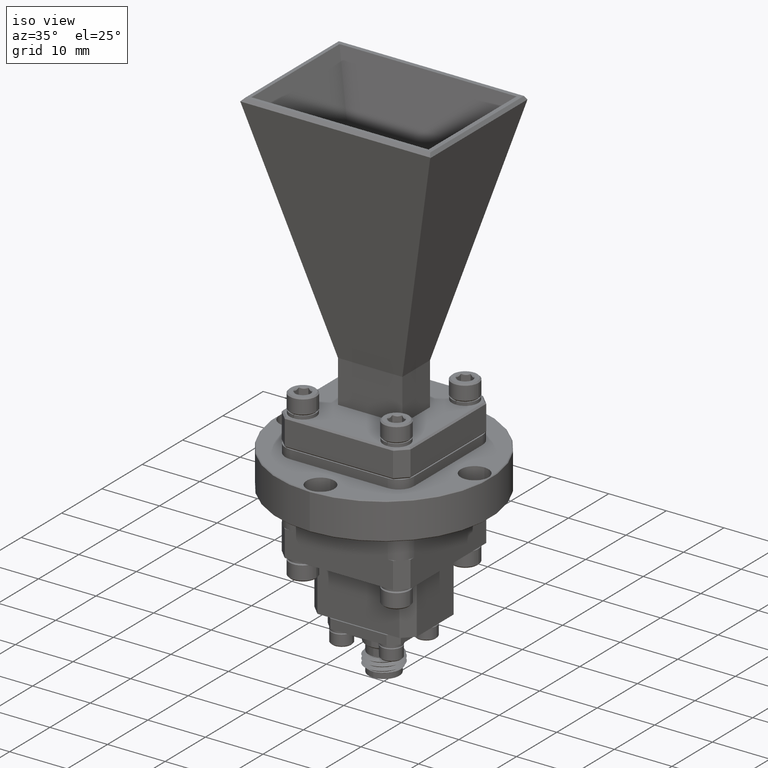
[diagram: clean part render]
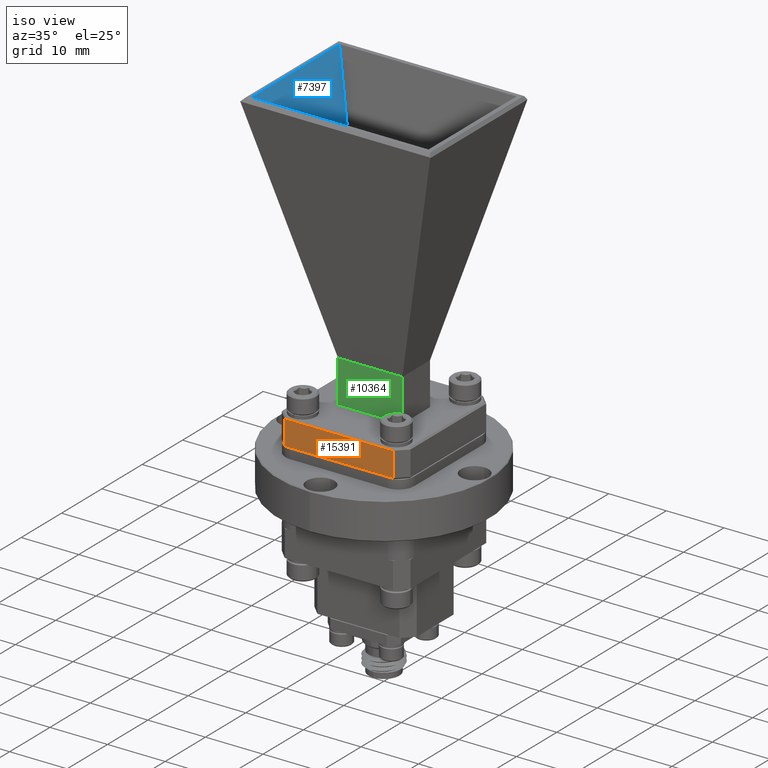
[diagram: same view with three faces highlighted in distinct colors, each labeled with its STEP entity id]
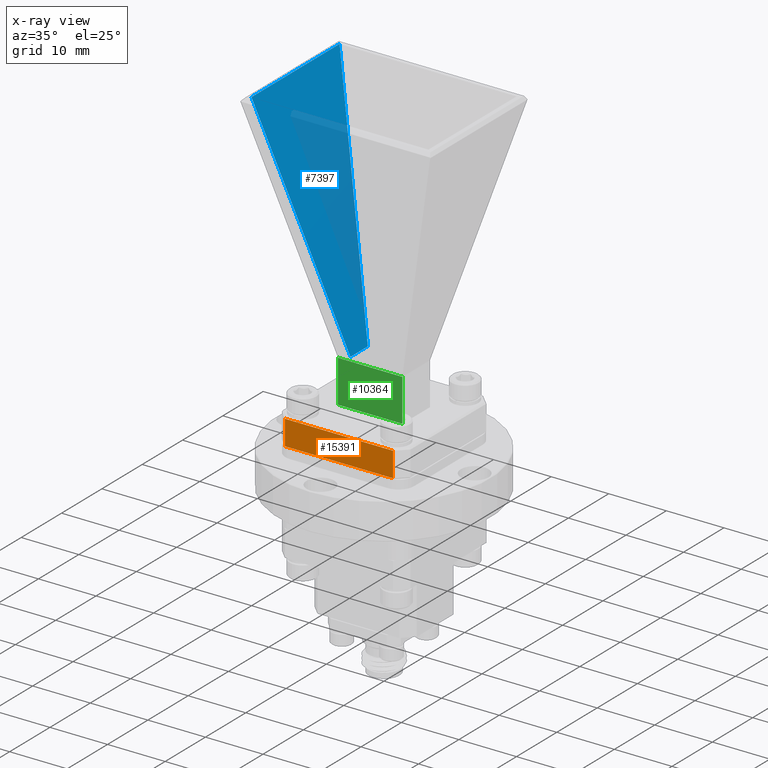
[diagram: x-ray of the same camera — body ghosted, the three highlighted faces saturated]
A machine part, iso view with three faces highlighted in distinct colors.
The next image is the same camera in x-ray (body ghosted, the three faces saturated) — at least one of them is partly hidden behind the body in this view.
Their STEP definitions:

[orange] entity #15391 — the highlighted planar face has unit normal (-0, 1, 0).
#891 = AXIS2_PLACEMENT_3D ( 'NONE', #8264, #13083, #6870 ) ;
#1344 = FACE_OUTER_BOUND ( 'NONE', #14027, .T. ) ;
#2558 = LINE ( 'NONE', #17818, #19158 ) ;
#2885 = VERTEX_POINT ( 'NONE', #8885 ) ;
#3293 = CARTESIAN_POINT ( 'NONE',  ( 0.3699999999999998300, -0.4399999999999999500, 0.6799999999999997200 ) ) ;
#5118 = VECTOR ( 'NONE', #13982, 39.37007874015748100 ) ;
#5693 = CARTESIAN_POINT ( 'NONE',  ( -0.3699999999999995500, -0.4400000000000001100, 0.8599999999999998800 ) ) ;
#6053 = CARTESIAN_POINT ( 'NONE',  ( -0.4399999999999996100, -0.4400000000000001100, 0.8599999999999998800 ) ) ;
#6206 = VECTOR ( 'NONE', #11234, 39.37007874015748100 ) ;
#6694 = LINE ( 'NONE', #15927, #6206 ) ;
#6870 = DIRECTION ( 'NONE',  ( 1.000000000000000000, 1.223371201526378100E-016, 0.0000000000000000000 ) ) ;
#7316 = VECTOR ( 'NONE', #17365, 39.37007874015748100 ) ;
#7492 = CARTESIAN_POINT ( 'NONE',  ( -0.3699999999999995500, -0.4400000000000001100, 0.6899999999999996100 ) ) ;
#8264 = CARTESIAN_POINT ( 'NONE',  ( -0.4399999999999996100, -0.4400000000000001100, 0.6799999999999997200 ) ) ;
#8470 = PLANE ( 'NONE',  #891 ) ;
#8835 = CARTESIAN_POINT ( 'NONE',  ( 0.3699999999999998300, -0.4399999999999999500, 0.8599999999999998800 ) ) ;
#8885 = CARTESIAN_POINT ( 'NONE',  ( 0.3699999999999998300, -0.4399999999999999500, 0.6899999999999996100 ) ) ;
#8908 = EDGE_CURVE ( 'NONE', #2885, #15089, #15571, .T. ) ;
#9074 = ORIENTED_EDGE ( 'NONE', *, *, #8908, .T. ) ;
#9206 = LINE ( 'NONE', #6053, #5118 ) ;
#11234 = DIRECTION ( 'NONE',  ( 1.000000000000000000, 1.223371201526378100E-016, 0.0000000000000000000 ) ) ;
#12630 = ORIENTED_EDGE ( 'NONE', *, *, #16282, .T. ) ;
#13083 = DIRECTION ( 'NONE',  ( -1.223371201526378100E-016, 1.000000000000000000, 0.0000000000000000000 ) ) ;
#13250 = ORIENTED_EDGE ( 'NONE', *, *, #19067, .T. ) ;
#13982 = DIRECTION ( 'NONE',  ( -1.000000000000000000, -1.223371201526378100E-016, 0.0000000000000000000 ) ) ;
#14027 = EDGE_LOOP ( 'NONE', ( #9074, #13250, #18145, #12630 ) ) ;
#15089 = VERTEX_POINT ( 'NONE', #8835 ) ;
#15379 = EDGE_CURVE ( 'NONE', #18326, #16510, #2558, .T. ) ;
#15391 = ADVANCED_FACE ( 'NONE', ( #1344 ), #8470, .F. ) ;
#15571 = LINE ( 'NONE', #3293, #7316 ) ;
#15927 = CARTESIAN_POINT ( 'NONE',  ( 0.3699999999999997200, -0.4399999999999999500, 0.6899999999999996100 ) ) ;
#16282 = EDGE_CURVE ( 'NONE', #16510, #2885, #6694, .T. ) ;
#16300 = DIRECTION ( 'NONE',  ( 0.0000000000000000000, 0.0000000000000000000, -1.000000000000000000 ) ) ;
#16510 = VERTEX_POINT ( 'NONE', #7492 ) ;
#17365 = DIRECTION ( 'NONE',  ( 0.0000000000000000000, 0.0000000000000000000, 1.000000000000000000 ) ) ;
#17818 = CARTESIAN_POINT ( 'NONE',  ( -0.3699999999999995500, -0.4400000000000001100, 0.6799999999999997200 ) ) ;
#18145 = ORIENTED_EDGE ( 'NONE', *, *, #15379, .T. ) ;
#18326 = VERTEX_POINT ( 'NONE', #5693 ) ;
#19067 = EDGE_CURVE ( 'NONE', #15089, #18326, #9206, .T. ) ;
#19158 = VECTOR ( 'NONE', #16300, 39.37007874015748100 ) ;

[blue] entity #7397 — the highlighted planar face has unit normal (-0.9658, -0, -0.2593).
#3 = B_SPLINE_CURVE_WITH_KNOTS ( 'NONE', 3,
 ( #17729, #15953, #5092, #11328 ),
 .UNSPECIFIED., .F., .F.,
 ( 4, 4 ),
 ( 0.0000000000000000000, 1.000000000000000000 ),
 .UNSPECIFIED. ) ;
#968 = DIRECTION ( 'NONE',  ( -0.2540148692151999500, -0.2014600686879173500, 0.9459864094910900300 ) ) ;
#1242 = VECTOR ( 'NONE', #968, 39.37007874015748900 ) ;
#1505 = VERTEX_POINT ( 'NONE', #1867 ) ;
#1867 = CARTESIAN_POINT ( 'NONE',  ( -0.1699999999999997900, 0.08499999999999986700, 1.159999999999999700 ) ) ;
#1869 = DIRECTION ( 'NONE',  ( -0.9657882279462223200, -2.680600818944562600E-016, -0.2593320241707448000 ) ) ;
#3383 = DIRECTION ( 'NONE',  ( -0.2593320241707447500, -7.197909606425211500E-017, 0.9657882279462222100 ) ) ;
#3393 = DIRECTION ( 'NONE',  ( -2.775557561562891400E-016, 1.000000000000000000, 0.0000000000000000000 ) ) ;
#3764 = EDGE_CURVE ( 'NONE', #1505, #15809, #6757, .T. ) ;
#4011 = CARTESIAN_POINT ( 'NONE',  ( -0.1699999999999997300, -0.08500000000000010300, 1.159999999999999700 ) ) ;
#4525 = CARTESIAN_POINT ( 'NONE',  ( -0.6049999999999995400, -0.4300000000000002200, 2.779999999999999800 ) ) ;
#5092 = CARTESIAN_POINT ( 'NONE',  ( -0.1699999999999997300, -0.02833333333333343600, 1.159999999999999700 ) ) ;
#5196 = CARTESIAN_POINT ( 'NONE',  ( -0.1699999999999997300, -0.08500000000000010300, 1.159999999999999700 ) ) ;
#6101 = ORIENTED_EDGE ( 'NONE', *, *, #3764, .T. ) ;
#6229 = CARTESIAN_POINT ( 'NONE',  ( -0.6049999999999998700, 0.4299999999999997700, 2.779999999999999800 ) ) ;
#6757 = LINE ( 'NONE', #12200, #13545 ) ;
#7397 = ADVANCED_FACE ( 'NONE', ( #8783 ), #15740, .F. ) ;
#7836 = LINE ( 'NONE', #4011, #1242 ) ;
#8341 = VERTEX_POINT ( 'NONE', #4525 ) ;
#8783 = FACE_OUTER_BOUND ( 'NONE', #14409, .T. ) ;
#9205 = ORIENTED_EDGE ( 'NONE', *, *, #17723, .F. ) ;
#9227 = EDGE_CURVE ( 'NONE', #1505, #11924, #3, .T. ) ;
#9272 = DIRECTION ( 'NONE',  ( -0.2540148692152000600, 0.2014600686879172200, 0.9459864094910900300 ) ) ;
#9816 = ORIENTED_EDGE ( 'NONE', *, *, #13764, .F. ) ;
#11328 = CARTESIAN_POINT ( 'NONE',  ( -0.1699999999999997300, -0.08500000000000010300, 1.159999999999999700 ) ) ;
#11924 = VERTEX_POINT ( 'NONE', #5196 ) ;
#12200 = CARTESIAN_POINT ( 'NONE',  ( -0.1699999999999997900, 0.08499999999999986700, 1.159999999999999700 ) ) ;
#12420 = AXIS2_PLACEMENT_3D ( 'NONE', #12741, #1869, #3383 ) ;
#12741 = CARTESIAN_POINT ( 'NONE',  ( -0.08593362654938009600, -9.214757253777201300E-017, 0.8469252299080365400 ) ) ;
#13545 = VECTOR ( 'NONE', #9272, 39.37007874015748900 ) ;
#13555 = ORIENTED_EDGE ( 'NONE', *, *, #9227, .F. ) ;
#13764 = EDGE_CURVE ( 'NONE', #8341, #15809, #19780, .T. ) ;
#14409 = EDGE_LOOP ( 'NONE', ( #9205, #13555, #6101, #9816 ) ) ;
#14874 = VECTOR ( 'NONE', #3393, 39.37007874015748100 ) ;
#15740 = PLANE ( 'NONE',  #12420 ) ;
#15809 = VERTEX_POINT ( 'NONE', #6229 ) ;
#15953 = CARTESIAN_POINT ( 'NONE',  ( -0.1699999999999997600, 0.02833333333333323100, 1.159999999999999700 ) ) ;
#17723 = EDGE_CURVE ( 'NONE', #11924, #8341, #7836, .T. ) ;
#17729 = CARTESIAN_POINT ( 'NONE',  ( -0.1699999999999997900, 0.08499999999999986700, 1.159999999999999700 ) ) ;
#18921 = CARTESIAN_POINT ( 'NONE',  ( -0.6049999999999995400, -0.4300000000000002200, 2.779999999999999800 ) ) ;
#19780 = LINE ( 'NONE', #18921, #14874 ) ;

[green] entity #10364 — the highlighted planar face has unit normal (-0, 1, 0).
#193 = DIRECTION ( 'NONE',  ( 1.000000000000000000, 2.775557561562891400E-016, 0.0000000000000000000 ) ) ;
#264 = PLANE ( 'NONE',  #15739 ) ;
#1454 = ORIENTED_EDGE ( 'NONE', *, *, #8964, .F. ) ;
#1464 = VECTOR ( 'NONE', #8416, 39.37007874015748100 ) ;
#1703 = LINE ( 'NONE', #17628, #1464 ) ;
#2986 = EDGE_LOOP ( 'NONE', ( #16293, #1454, #5796, #12412 ) ) ;
#3618 = VECTOR ( 'NONE', #9349, 39.37007874015748100 ) ;
#5664 = EDGE_CURVE ( 'NONE', #9562, #11597, #11312, .T. ) ;
#5796 = ORIENTED_EDGE ( 'NONE', *, *, #5664, .F. ) ;
#7333 = DIRECTION ( 'NONE',  ( 1.000000000000000000, 3.773009954097587200E-016, 2.124204169286854300E-017 ) ) ;
#8207 = DIRECTION ( 'NONE',  ( -2.775557561562891400E-016, 1.000000000000000000, 0.0000000000000000000 ) ) ;
#8416 = DIRECTION ( 'NONE',  ( 0.0000000000000000000, 0.0000000000000000000, -1.000000000000000000 ) ) ;
#8964 = EDGE_CURVE ( 'NONE', #11597, #17535, #1703, .T. ) ;
#9349 = DIRECTION ( 'NONE',  ( 1.000000000000000000, 2.775557561562891400E-016, 0.0000000000000000000 ) ) ;
#9562 = VERTEX_POINT ( 'NONE', #11467 ) ;
#10202 = LINE ( 'NONE', #10406, #14096 ) ;
#10364 = ADVANCED_FACE ( 'NONE', ( #18211 ), #264, .F. ) ;
#10406 = CARTESIAN_POINT ( 'NONE',  ( -0.2199999999999997000, -0.1350000000000001800, 1.159999999999999700 ) ) ;
#10867 = CARTESIAN_POINT ( 'NONE',  ( -0.2199999999999997000, -0.1350000000000001800, 0.8699999999999997700 ) ) ;
#11139 = CARTESIAN_POINT ( 'NONE',  ( 0.2200000000000003100, -0.1350000000000000400, 1.159999999999999700 ) ) ;
#11312 = LINE ( 'NONE', #14936, #18631 ) ;
#11467 = CARTESIAN_POINT ( 'NONE',  ( -0.2199999999999997000, -0.1350000000000002300, 1.159999999999999700 ) ) ;
#11597 = VERTEX_POINT ( 'NONE', #12307 ) ;
#11655 = LINE ( 'NONE', #18640, #3618 ) ;
#12307 = CARTESIAN_POINT ( 'NONE',  ( 0.2200000000000003600, -0.1350000000000000100, 1.159999999999999700 ) ) ;
#12412 = ORIENTED_EDGE ( 'NONE', *, *, #14588, .T. ) ;
#14096 = VECTOR ( 'NONE', #18140, 39.37007874015748100 ) ;
#14588 = EDGE_CURVE ( 'NONE', #9562, #19072, #10202, .T. ) ;
#14936 = CARTESIAN_POINT ( 'NONE',  ( 3.179602416558119400E-016, -0.1350000000000001800, 1.159999999999999700 ) ) ;
#15739 = AXIS2_PLACEMENT_3D ( 'NONE', #11139, #8207, #193 ) ;
#16293 = ORIENTED_EDGE ( 'NONE', *, *, #20007, .T. ) ;
#17535 = VERTEX_POINT ( 'NONE', #19405 ) ;
#17628 = CARTESIAN_POINT ( 'NONE',  ( 0.2200000000000003100, -0.1350000000000000400, 1.159999999999999700 ) ) ;
#18140 = DIRECTION ( 'NONE',  ( 0.0000000000000000000, 0.0000000000000000000, -1.000000000000000000 ) ) ;
#18211 = FACE_OUTER_BOUND ( 'NONE', #2986, .T. ) ;
#18631 = VECTOR ( 'NONE', #7333, 39.37007874015748100 ) ;
#18640 = CARTESIAN_POINT ( 'NONE',  ( 0.2200000000000003100, -0.1350000000000000400, 0.8699999999999997700 ) ) ;
#19072 = VERTEX_POINT ( 'NONE', #10867 ) ;
#19405 = CARTESIAN_POINT ( 'NONE',  ( 0.2200000000000003100, -0.1350000000000000400, 0.8699999999999997700 ) ) ;
#20007 = EDGE_CURVE ( 'NONE', #19072, #17535, #11655, .T. ) ;